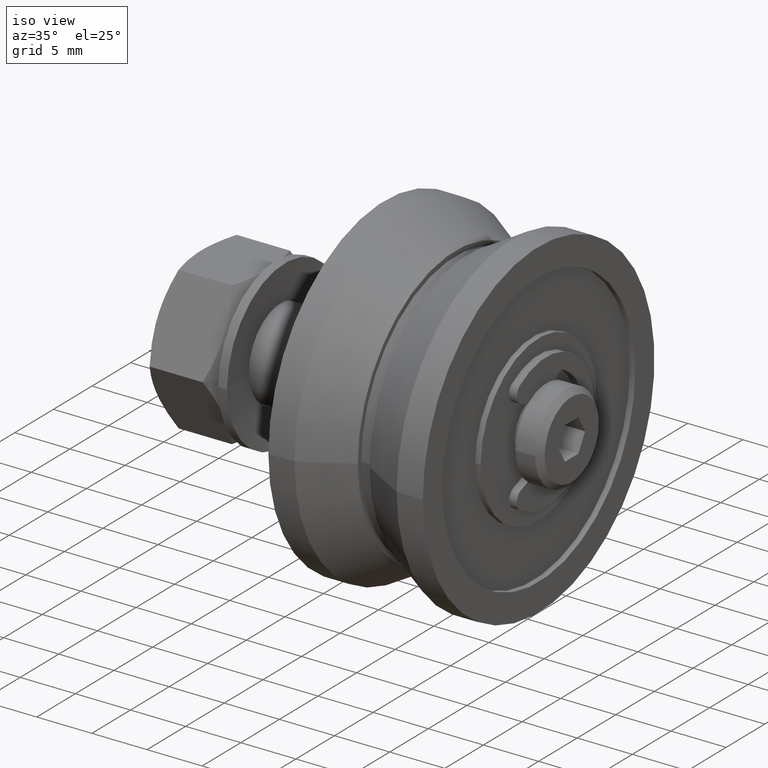
[diagram: clean part render]
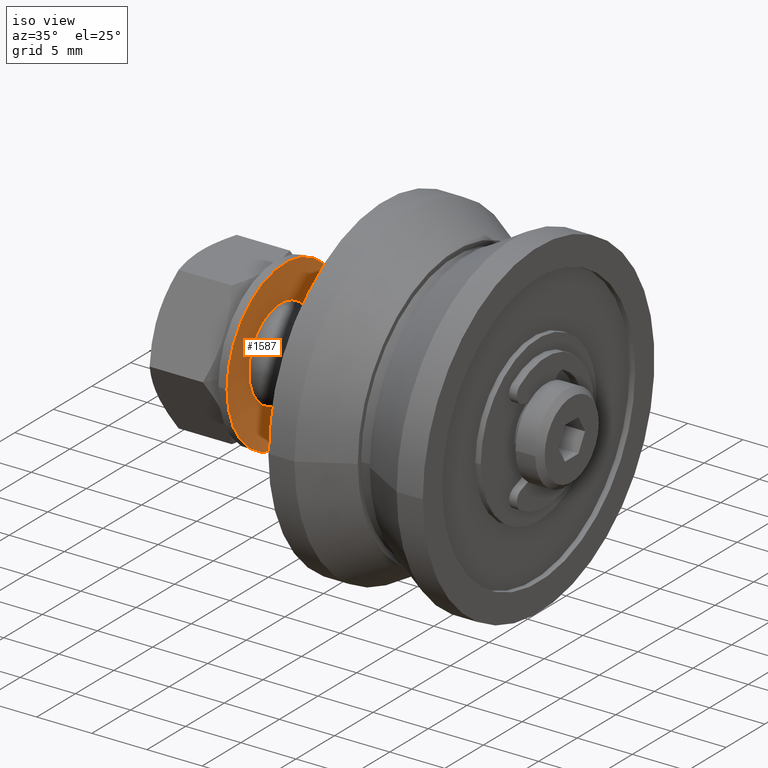
[diagram: same view with one face highlighted and labeled with its STEP entity id]
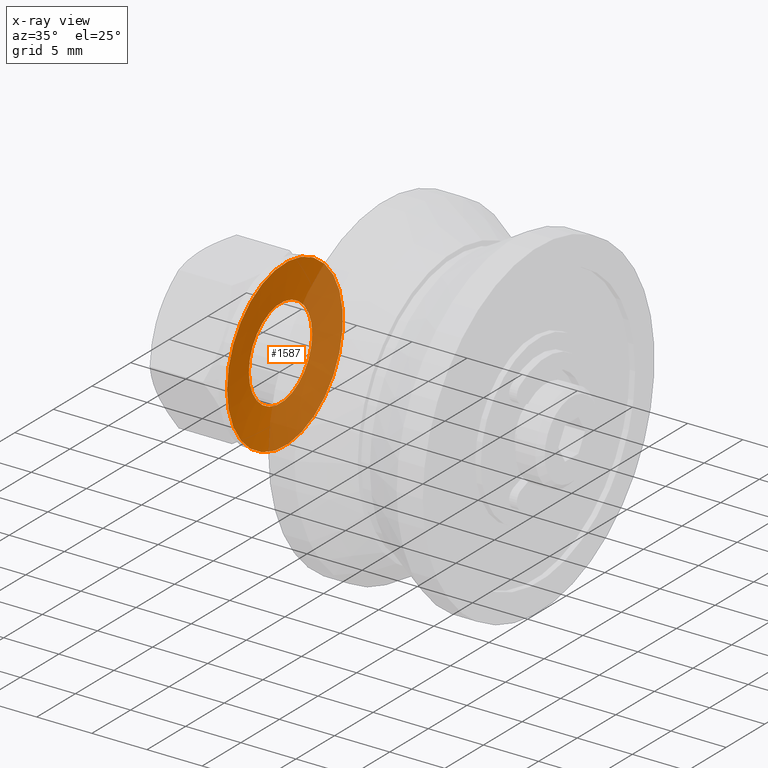
[diagram: x-ray of the same camera — body ghosted, the highlighted face saturated]
A machine part, iso view. The second image highlights one B-rep face of the part: STEP entity #1587.
The next image is the same camera in x-ray: the body ghosted, the highlighted face saturated — about 49% of this face is hidden behind the body in this view.
In plain terms, the highlighted conical surface has half-angle 83.29 deg.
Its self-contained STEP definition (entity closure, byte-faithful):
#241=FACE_OUTER_BOUND('',#357,.T.);
#357=EDGE_LOOP('',(#1369,#1370,#1371,#1372));
#465=LINE('',#2821,#583);
#583=VECTOR('',#2312,5.8);
#675=CIRCLE('',#1886,7.5);
#676=CIRCLE('',#1888,4.1);
#801=VERTEX_POINT('',#2816);
#802=VERTEX_POINT('',#2820);
#996=EDGE_CURVE('',#801,#801,#675,.T.);
#998=EDGE_CURVE('',#801,#802,#465,.T.);
#999=EDGE_CURVE('',#802,#802,#676,.T.);
#1369=ORIENTED_EDGE('',*,*,#996,.T.);
#1370=ORIENTED_EDGE('',*,*,#998,.T.);
#1371=ORIENTED_EDGE('',*,*,#999,.F.);
#1372=ORIENTED_EDGE('',*,*,#998,.F.);
#1510=CONICAL_SURFACE('',#1887,5.8,1.45368758222803);
#1587=ADVANCED_FACE('',(#241),#1510,.F.);
#1886=AXIS2_PLACEMENT_3D('',#2817,#2307,#2308);
#1887=AXIS2_PLACEMENT_3D('',#2819,#2310,#2311);
#1888=AXIS2_PLACEMENT_3D('',#2822,#2313,#2314);
#2307=DIRECTION('center_axis',(0.,-1.,0.));
#2308=DIRECTION('ref_axis',(1.,0.,0.));
#2310=DIRECTION('center_axis',(0.,-1.,0.));
#2311=DIRECTION('ref_axis',(1.,0.,0.));
#2312=DIRECTION('',(0.993150604322876,0.116841247567397,1.21625870865527E-16));
#2313=DIRECTION('center_axis',(0.,-1.,0.));
#2314=DIRECTION('ref_axis',(1.,0.,0.));
#2816=CARTESIAN_POINT('',(-7.5,0.,-9.18485099360515E-16));
#2817=CARTESIAN_POINT('Origin',(0.,0.,0.));
#2819=CARTESIAN_POINT('Origin',(0.,0.2,0.));
#2820=CARTESIAN_POINT('',(-4.1,0.4,-5.02105187650415E-16));
#2821=CARTESIAN_POINT('',(-5.8,0.2,-7.10295143505465E-16));
#2822=CARTESIAN_POINT('Origin',(0.,0.399999999999999,0.));